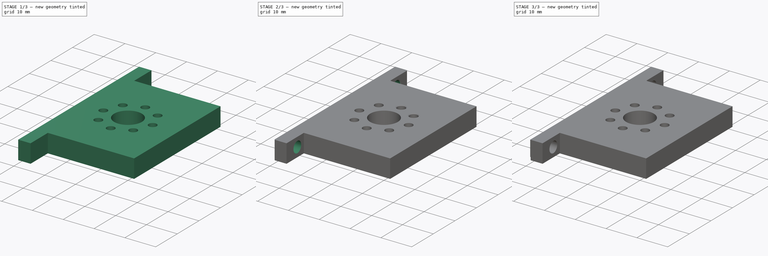
[diagram: build sequence overview — one tinted view per stage of 3, left to right]
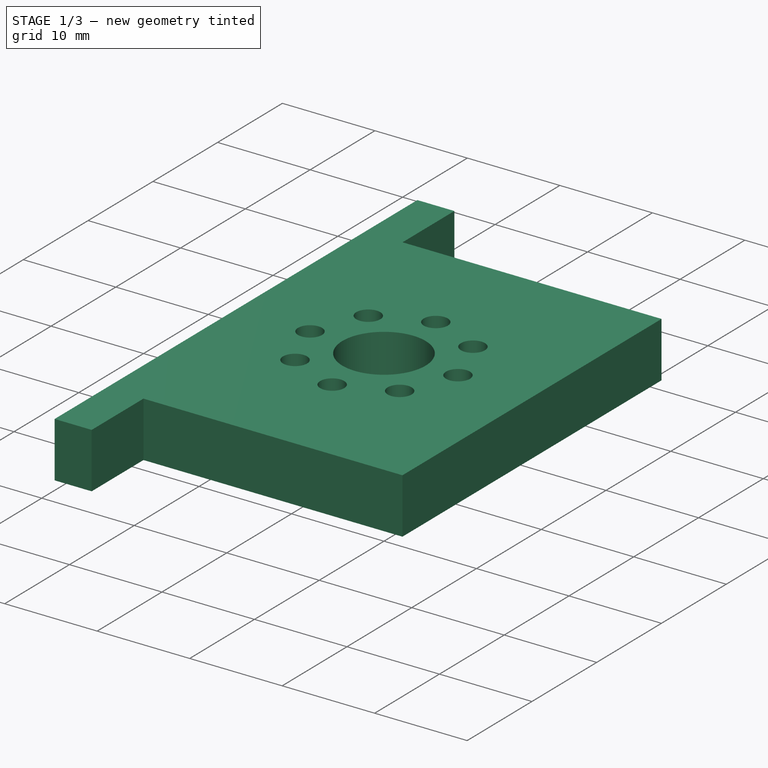
[diagram: stage 1 of 3 — iso view after this stage's code; geometry added in this stage tinted green]
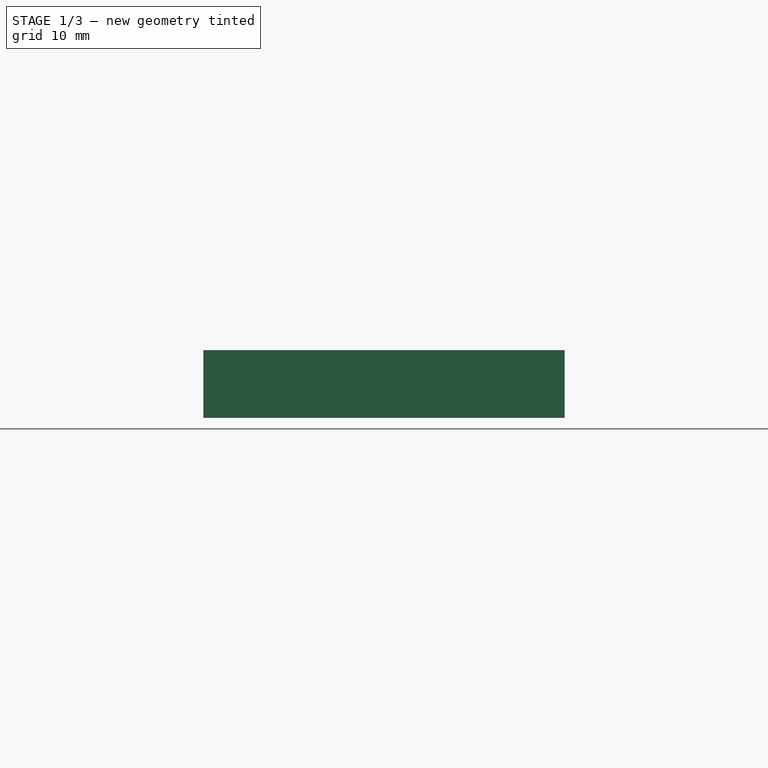
[diagram: stage 1 of 3 — front view after this stage's code; geometry added in this stage tinted green]
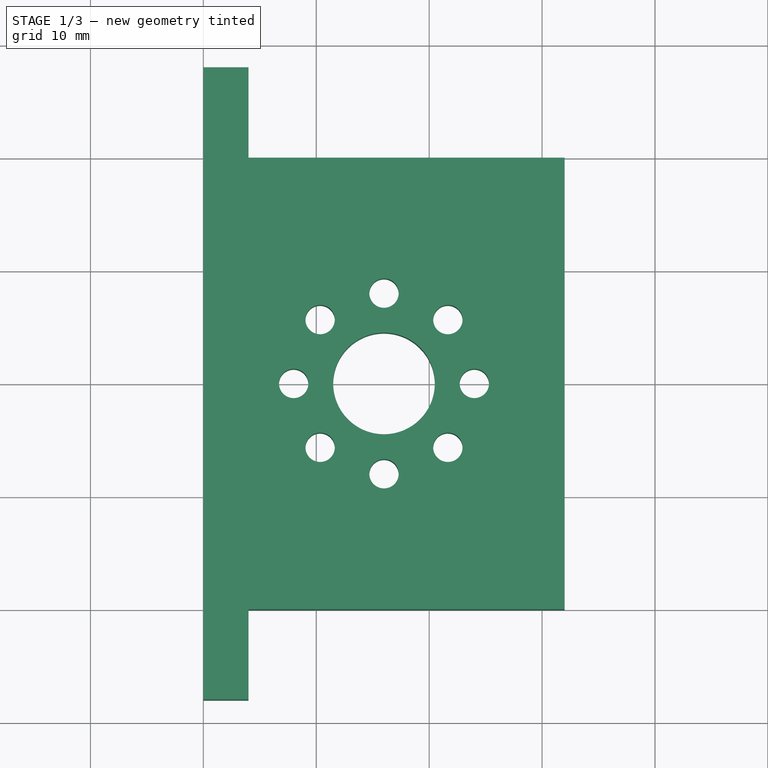
[diagram: stage 1 of 3 — top view after this stage's code; geometry added in this stage tinted green]
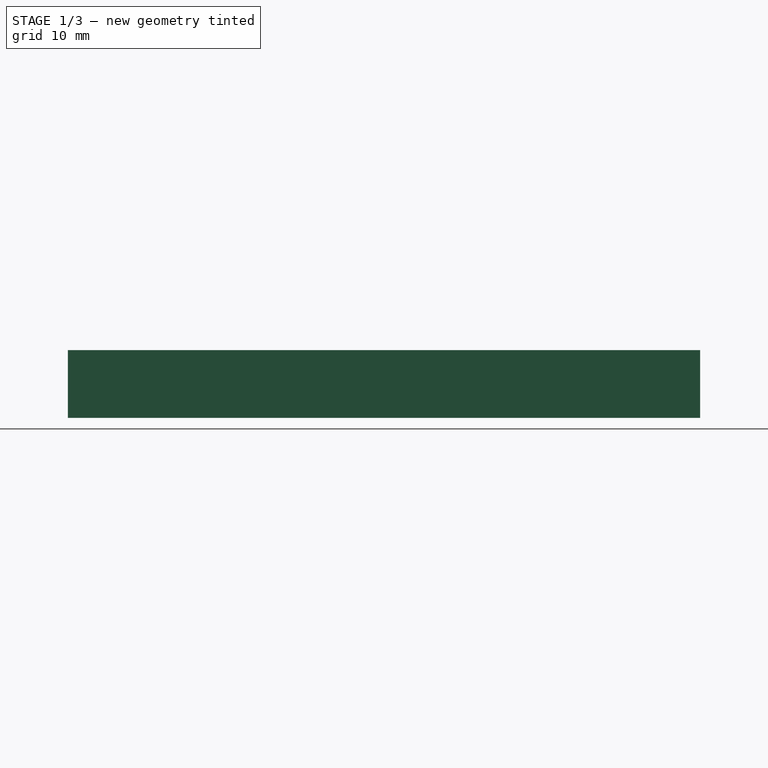
[diagram: stage 1 of 3 — right view after this stage's code; geometry added in this stage tinted green]
FCSTD DOCUMENT  (FreeCAD 0.21R33694 (Git))
Label: _mod_thighInner
License: All rights reserved
LicenseURL: http://en.wikipedia.org/wiki/All_rights_reserved
objects: Sketcher::SketchObject×4, PartDesign::Pocket×3, PartDesign::Chamfer×2, PartDesign::Pad×1, PartDesign::Body×1
note: 17 computed .brp shape members not serialized (recipe doc carries the construction recipe); baked Part::Feature solids carry a one-line shape summary decoded from their .brp

FEATURE [Sketcher::SketchObject] Sketch
  FullyConstrained = true
  MapMode = 5
  Support = -> [XY_Plane]
  sketch-geometry (12):
    g0: LineSegment StartX=0 StartY=20 StartZ=0 EndX=0 EndY=-20 EndZ=0
    g1: LineSegment StartX=32 StartY=-20 StartZ=0 EndX=32 EndY=20 EndZ=0
    g2: LineSegment StartX=32 StartY=20 StartZ=0 EndX=4 EndY=20 EndZ=0
    g3: LineSegment StartX=4 StartY=20 StartZ=0 EndX=0 EndY=20 EndZ=0
    g4: LineSegment StartX=0 StartY=-20 StartZ=0 EndX=4 EndY=-20 EndZ=0
    g5: LineSegment StartX=4 StartY=-20 StartZ=0 EndX=32 EndY=-20 EndZ=0
    g6: LineSegment StartX=4 StartY=20 StartZ=0 EndX=4 EndY=28 EndZ=0
    g7: LineSegment StartX=4 StartY=28 StartZ=0 EndX=0 EndY=28 EndZ=0
    g8: LineSegment StartX=0 StartY=28 StartZ=0 EndX=0 EndY=20 EndZ=0
    g9: LineSegment StartX=4 StartY=-20 StartZ=0 EndX=4 EndY=-28 EndZ=0
    g10: LineSegment StartX=4 StartY=-28 StartZ=0 EndX=0 EndY=-28 EndZ=0
    g11: LineSegment StartX=0 StartY=-28 StartZ=0 EndX=0 EndY=-20 EndZ=0
  constraints (34):
    c: Vertical(g0)
    c: Coincident(g4,g0)
    c: Coincident(g1,g5)
    c: Coincident(g2,g1)
    c: Coincident(g3,g0)
    c: DistanceX(g0,g-1) = 0
    c: Vertical(g1)
    c: DistanceX(g-1,g5) = 32
    c: DistanceY(g-1,g0) = 20
    c: DistanceY(g0,g-1) = 20
    c: DistanceY(g5,g-1) = 20
    c: DistanceY(g-1,g1) = 20
    c: Coincident(g2,g3)
    c: Coincident(g4,g5)
    c: DistanceX(g2,g4) = 0
    c: DistanceX(g-1,g2) = 4
    c: DistanceY(g2,g1) = 0
    c: DistanceY(g4,g0) = 0
    c: Coincident(g6,g2)
    c: Vertical(g6)
    c: Coincident(g7,g6)
    c: PointOnObject(g7,g-2)
    c: Horizontal(g7)
    c: Coincident(g8,g7)
    c: Coincident(g8,g0)
    c: Coincident(g9,g4)
    c: Vertical(g9)
    c: Coincident(g10,g9)
    c: PointOnObject(g10,g-2)
    c: Horizontal(g10)
    c: Coincident(g11,g10)
    c: Coincident(g11,g0)
    c: DistanceY(g10,g0) = 8
    c: DistanceY(g0,g7) = 8
FEATURE [PartDesign::Pad] Pad
  Direction = (0,0,1)
  Length = 6
  Length2 = 10
  Profile = -> Sketch
  ReferenceAxis = -> Sketch [N_Axis]
  Type = 0
FEATURE [Sketcher::SketchObject] Sketch002
  FullyConstrained = true
  MapMode = 5
  Placement = pos=(0,0,6) rot=(0,0,1;0rad)
  sketch-geometry (11):
    g0: Circle CenterX=16 CenterY=-3e-16 CenterZ=0 NormalX=0 NormalY=0 NormalZ=1 AngleXU=0 Radius=4.5
    g1: Circle CenterX=16 CenterY=-3e-16 CenterZ=0 NormalX=0 NormalY=0 NormalZ=1 AngleXU=0 Radius=8
    g2: Circle CenterX=16 CenterY=8 CenterZ=0 NormalX=0 NormalY=0 NormalZ=1 AngleXU=0 Radius=1.3
    g3: Circle CenterX=21.6569 CenterY=5.65685 CenterZ=0 NormalX=0 NormalY=0 NormalZ=1 AngleXU=0 Radius=1.3
    g4: Circle CenterX=24 CenterY=0 CenterZ=0 NormalX=0 NormalY=0 NormalZ=1 AngleXU=0 Radius=1.3
    g5: Circle CenterX=21.6569 CenterY=-5.65685 CenterZ=0 NormalX=0 NormalY=0 NormalZ=1 AngleXU=0 Radius=1.3
    g6: Circle CenterX=16 CenterY=-8 CenterZ=0 NormalX=0 NormalY=0 NormalZ=1 AngleXU=0 Radius=1.3
    g7: Circle CenterX=10.3431 CenterY=-5.65685 CenterZ=0 NormalX=0 NormalY=0 NormalZ=1 AngleXU=0 Radius=1.3
    g8: Circle CenterX=8 CenterY=0 CenterZ=0 NormalX=0 NormalY=0 NormalZ=1 AngleXU=0 Radius=1.3
    g9: Circle CenterX=10.3431 CenterY=5.65685 CenterZ=0 NormalX=0 NormalY=0 NormalZ=1 AngleXU=0 Radius=1.3
    g10: LineSegment StartX=21.6569 StartY=5.65685 StartZ=0 EndX=16 EndY=-3e-16 EndZ=0
  constraints (31):
    c: PointOnObject(g0,g-1)
    c: Coincident(g1,g0)
    c: Radius(g0) = 4.5
    c: Radius(g1) = 8
    c: PointOnObject(g2,g1)
    c: PointOnObject(g3,g1)
    c: PointOnObject(g4,g1)
    c: PointOnObject(g5,g1)
    c: PointOnObject(g6,g1)
    c: PointOnObject(g7,g1)
    c: PointOnObject(g8,g1)
    c: PointOnObject(g9,g1)
    c: Radius(g3) = 1.3
    c: Radius(g2) = 1.3
    c: Radius(g4) = 1.3
    c: Radius(g5) = 1.3
    c: Radius(g6) = 1.3
    c: Radius(g7) = 1.3
    c: Radius(g8) = 1.3
    c: Radius(g9) = 1.3
    c: DistanceX(g2,g0) = 0
    c: DistanceX(g6,g0) = 0
    c: DistanceX(g-1,g0) = 16
    c: Coincident(g10,g3)
    c: Coincident(g10,g0)
    c: Angle(g10,g-1) = 2.35619
    c: DistanceY(g4,g0) = 0
    c: DistanceY(g0,g8) = 0
    c: DistanceY(g9,g3) = 0
    c: DistanceX(g3,g5) = 0
    c: DistanceX(g9,g7) = 0
FEATURE [PartDesign::Pocket] Pocket001
  BaseFeature = -> Pad
  Direction = (0,0,-1)
  Length = 20
  Length2 = 5
  Profile = -> Sketch002
  ReferenceAxis = -> Sketch002 [N_Axis]
  Type = 0
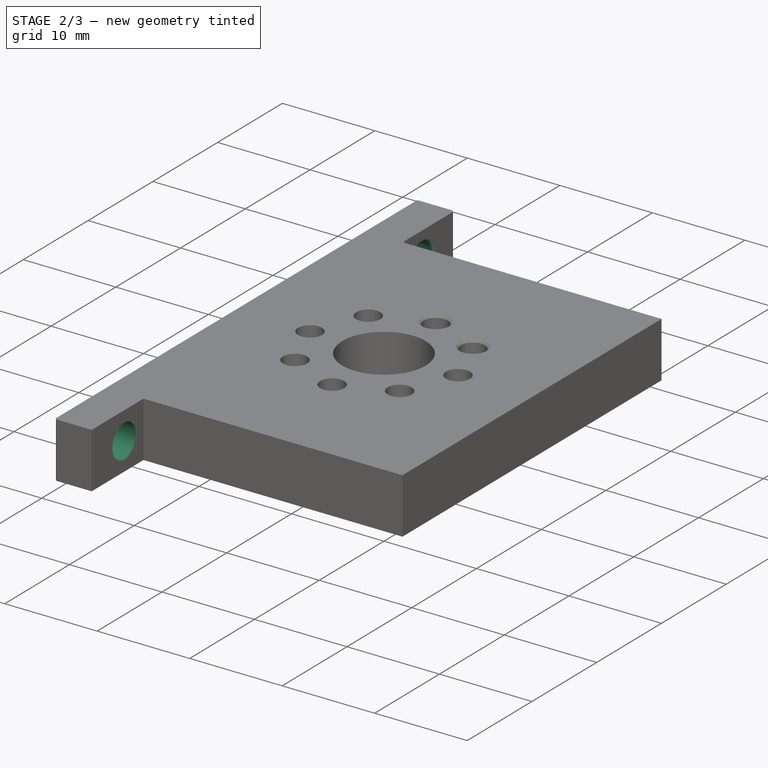
[diagram: stage 2 of 3 — iso view after this stage's code; geometry added in this stage tinted green]
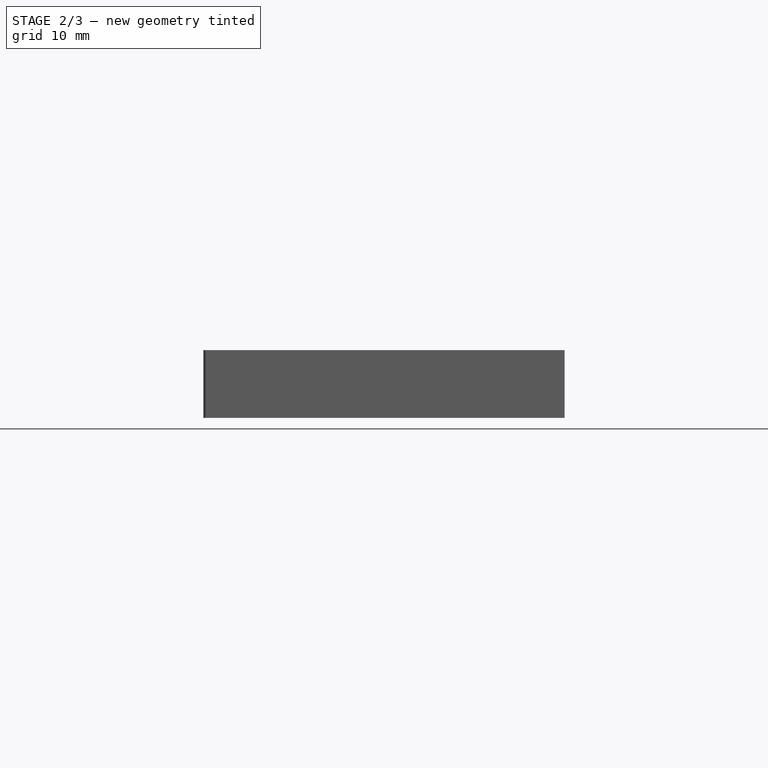
[diagram: stage 2 of 3 — front view after this stage's code; geometry added in this stage tinted green]
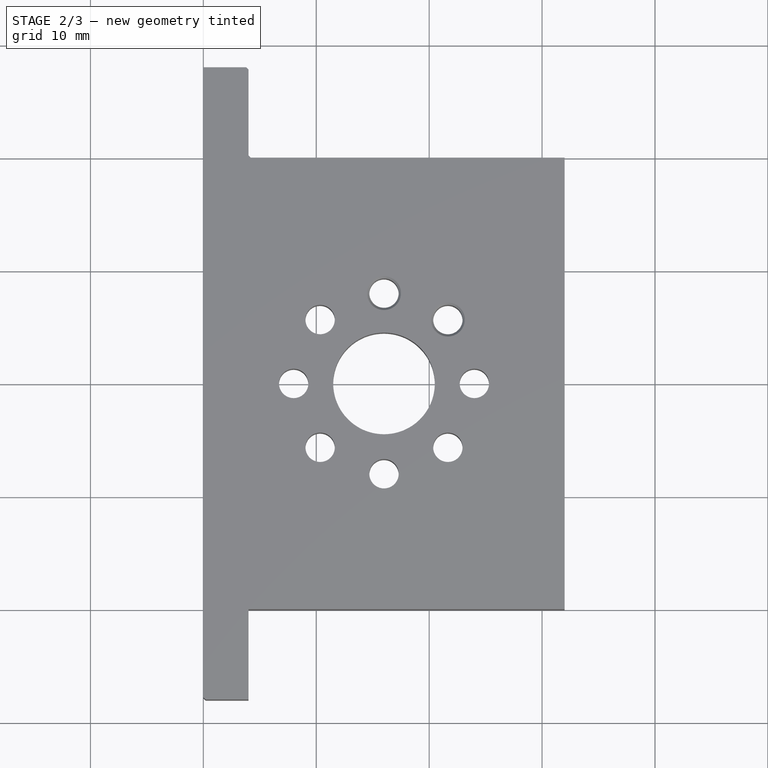
[diagram: stage 2 of 3 — top view after this stage's code; geometry added in this stage tinted green]
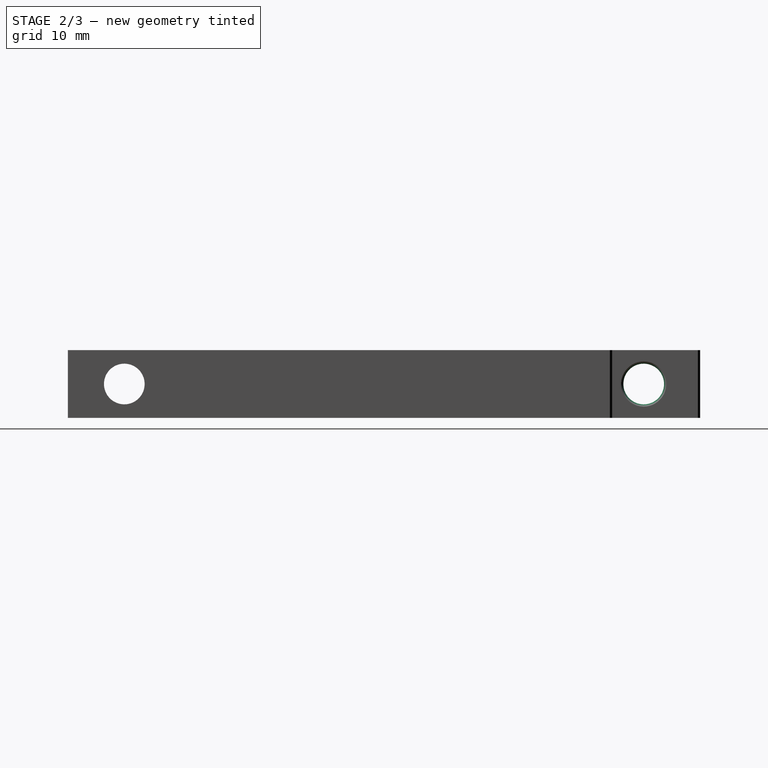
[diagram: stage 2 of 3 — right view after this stage's code; geometry added in this stage tinted green]
FEATURE [Sketcher::SketchObject] Sketch005
  FullyConstrained = true
  MapMode = 5
  Placement = pos=(0,0,0) rot=(0.57735,-0.57735,-0.57735;2.0944rad)
  sketch-geometry (2):
    g0: Circle CenterX=23 CenterY=3 CenterZ=0 NormalX=0 NormalY=0 NormalZ=1 AngleXU=0 Radius=1.8
    g1: Circle CenterX=-23 CenterY=3 CenterZ=0 NormalX=0 NormalY=0 NormalZ=1 AngleXU=0 Radius=1.8
  constraints (6):
    c: DistanceY(g-1,g1) = 3
    c: DistanceY(g1,g0) = 0
    c: Radius(g0) = 1.8
    c: Radius(g1) = 1.8
    c: DistanceX(g1,g-1) = 23
    c: DistanceX(g-1,g0) = 23
FEATURE [PartDesign::Pocket] Pocket
  BaseFeature = -> Pocket001
  Direction = (1,0,0)
  Length = 5
  Length2 = 5
  Profile = -> Sketch005
  ReferenceAxis = -> Sketch005 [N_Axis]
  Type = 0
FEATURE [PartDesign::Chamfer] Chamfer001
  Angle = 45
  Base = -> Pocket [Edge43,Edge42,Edge44,Edge49,Edge50,Edge46,Edge48,Edge47,Edge45]
  BaseFeature = -> Pocket
  ChamferType = 0
  FlipDirection = false
  Size = 0.2
  Size2 = 1
  SupportTransform = false
  UseAllEdges = false
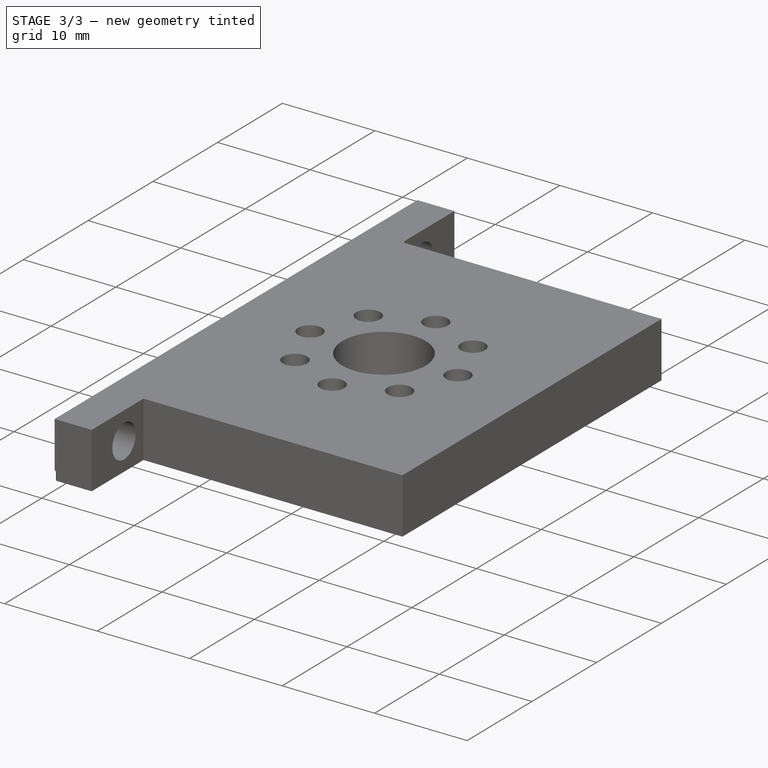
[diagram: stage 3 of 3 — iso view after this stage's code; geometry added in this stage tinted green]
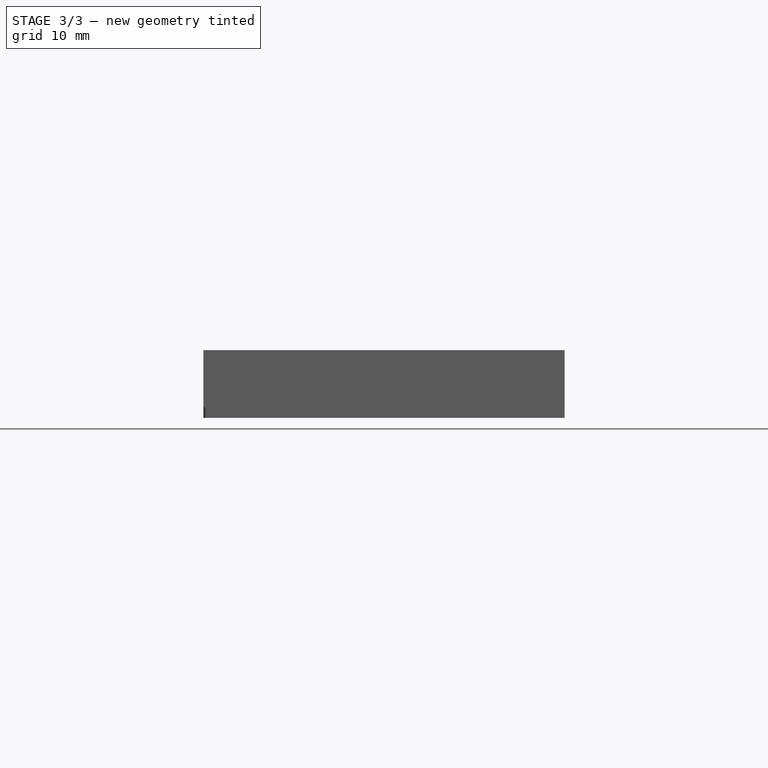
[diagram: stage 3 of 3 — front view after this stage's code; geometry added in this stage tinted green]
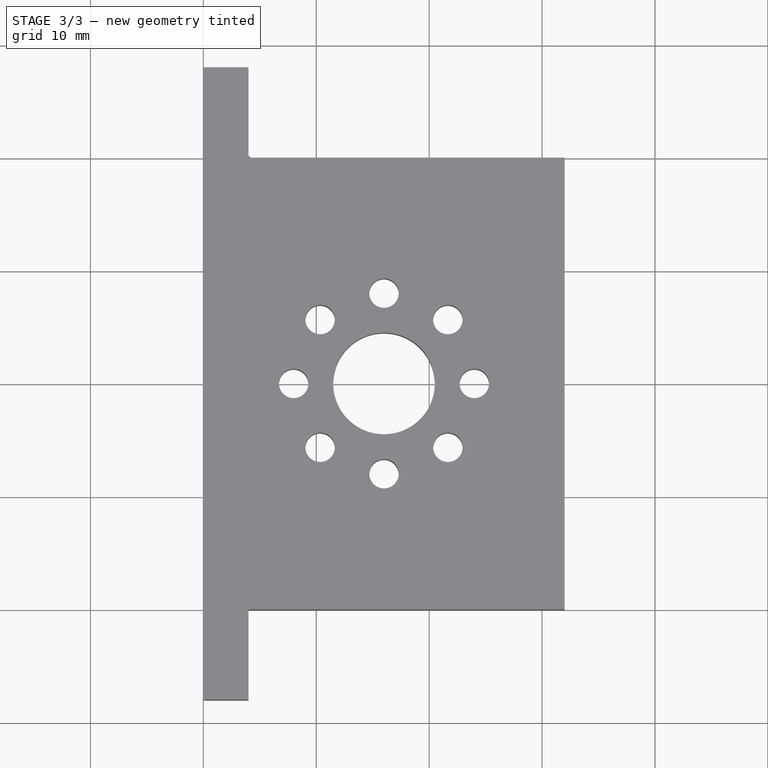
[diagram: stage 3 of 3 — top view after this stage's code; geometry added in this stage tinted green]
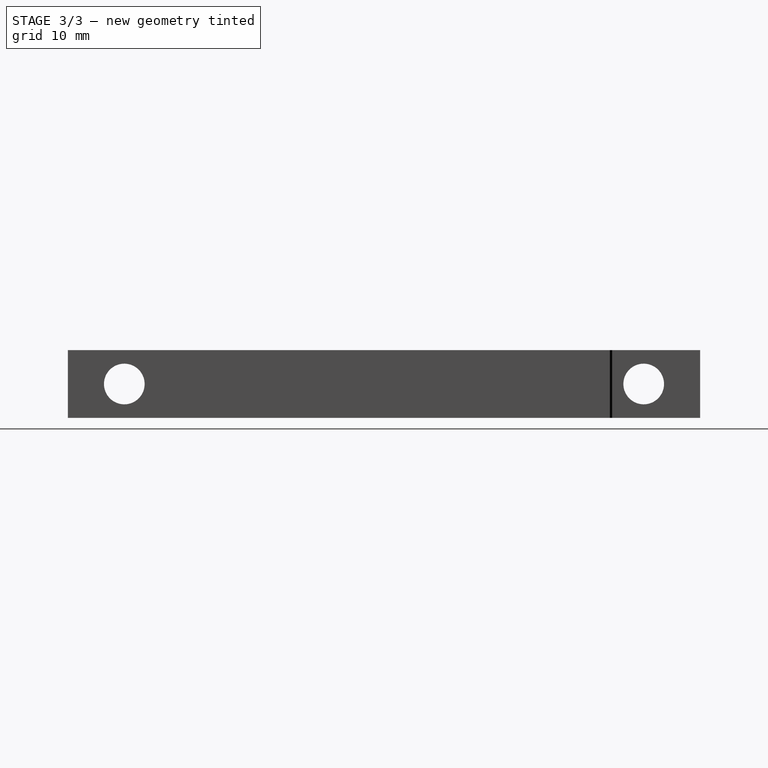
[diagram: stage 3 of 3 — right view after this stage's code; geometry added in this stage tinted green]
FEATURE [PartDesign::Chamfer] Chamfer
  Angle = 45
  Base = -> Pocket [Edge23,Edge25,Edge26,Edge24,Edge21,Edge19,Edge18,Edge20]
  BaseFeature = -> Pocket
  ChamferType = 0
  FlipDirection = false
  Size = 1
  Size2 = 1
  SupportTransform = false
  UseAllEdges = false
FEATURE [Sketcher::SketchObject] Sketch006
  FullyConstrained = true
  MapMode = 5
  Placement = pos=(0,0,0) rot=(1,0,0;3.14159rad)
  Support = -> [Pocket]
  sketch-geometry (2):
    g0: Circle CenterX=25 CenterY=16 CenterZ=0 NormalX=0 NormalY=0 NormalZ=1 AngleXU=0 Radius=1.8
    g1: Circle CenterX=25 CenterY=-16 CenterZ=0 NormalX=0 NormalY=0 NormalZ=1 AngleXU=0 Radius=1.8
  constraints (6):
    c: Radius(g0) = 1.8
    c: Radius(g1) = 1.8
    c: DistanceX(g1,g0) = 0
    c: DistanceY(g-1,g0) = 16
    c: DistanceY(g1,g-1) = 16
    c: DistanceX(g-1,g0) = 25
FEATURE [PartDesign::Pocket] Pocket002
  BaseFeature = -> Chamfer001
  Direction = (0,0,1)
  Length = 6
  Length2 = 5
  Profile = -> Sketch006
  ReferenceAxis = -> Sketch006 [N_Axis]
  Type = 0
FEATURE [PartDesign::Body] Body
  Group = -> [Sketch,Pad,Sketch002,Pocket001,Sketch005,Pocket,Chamfer,Chamfer001,Sketch006,Pocket002]
  Origin = -> Origin
  Tip = -> Pocket002
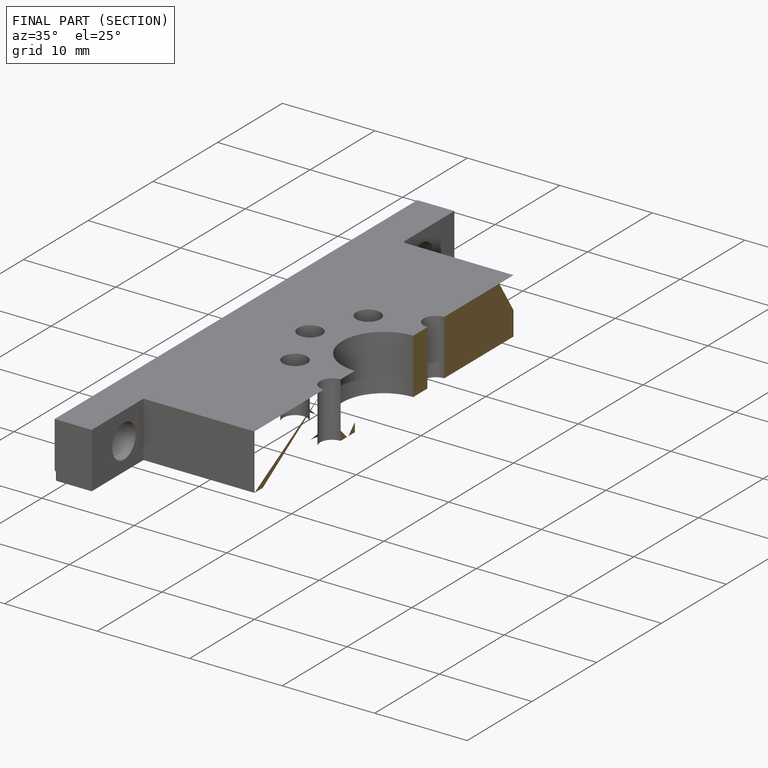
[diagram: finished part — half-section view (interior)]
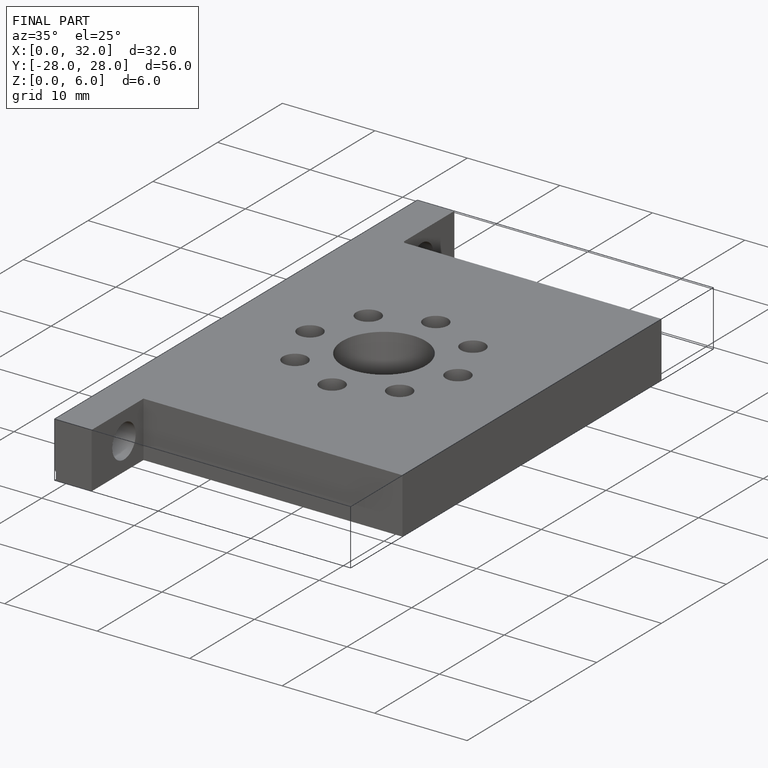
[diagram: finished part — iso view with bounding-box wireframe]
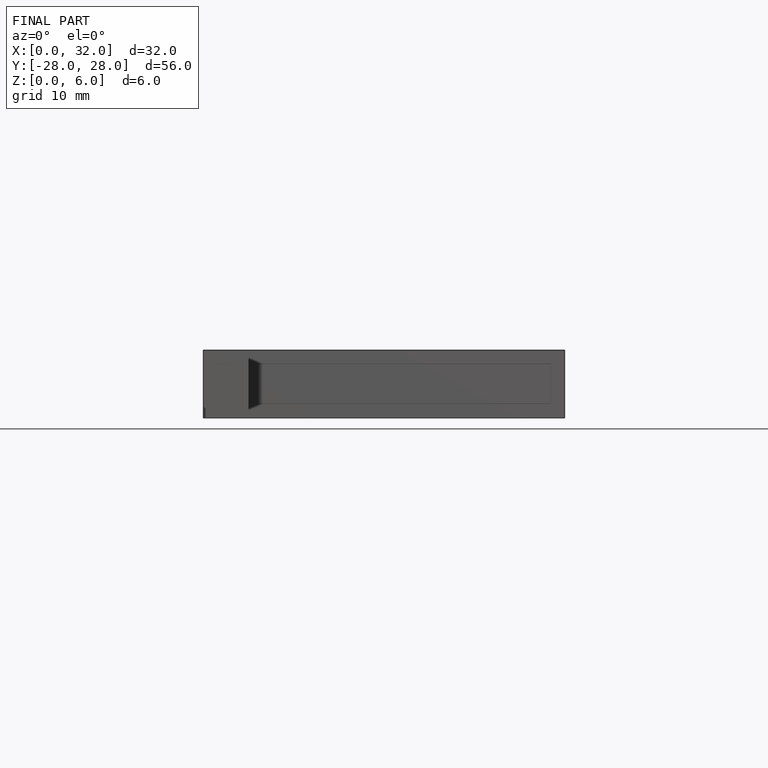
[diagram: finished part — front view with bounding-box wireframe]
